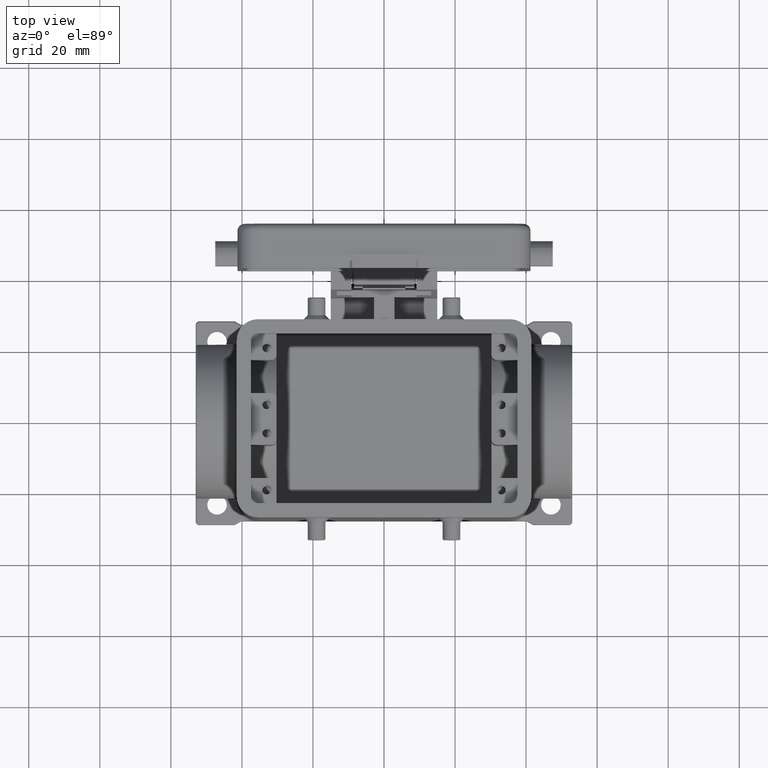
[diagram: clean part render]
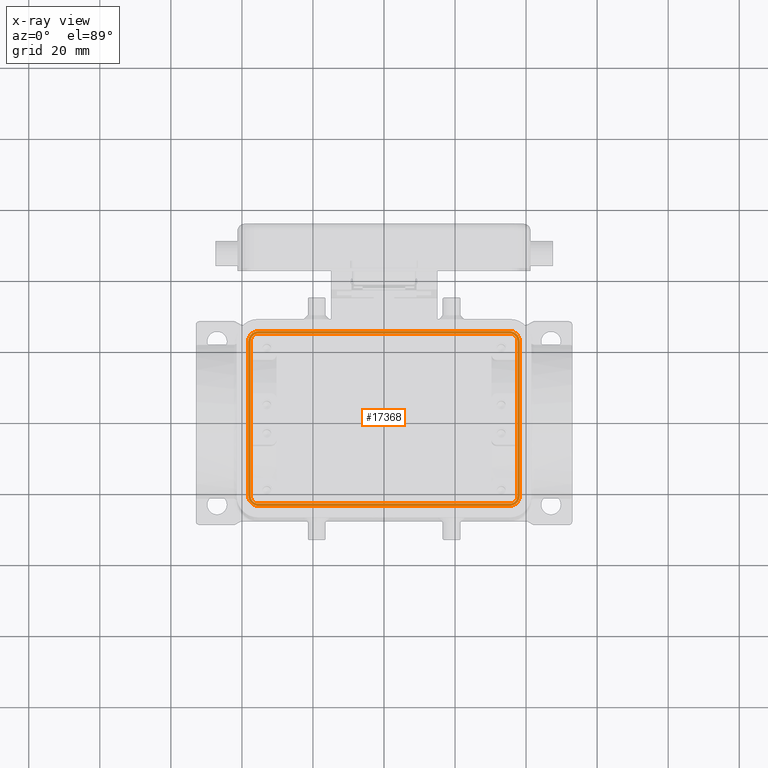
[diagram: x-ray — body ghosted, one internal face saturated and labeled with its STEP entity id]
A machine part, top view, then the same camera in x-ray: the body is ghosted and one INTERNAL B-rep face — a face not visible from any outside direction — is saturated and labeled: STEP entity #17368.
In plain terms, the highlighted planar face has unit normal (0, 0, 1).
Its self-contained STEP definition (entity closure, byte-faithful):
#12184=CARTESIAN_POINT('',(-38.250000000000007,21.649999999999999,24.0));
#12185=VERTEX_POINT('',#12184);
#12192=CARTESIAN_POINT('',(-38.250000000000000,-21.650000000000009,24.0));
#12193=VERTEX_POINT('',#12192);
#12194=CARTESIAN_POINT('',(-38.250000000000000,-21.650000000000009,24.0));
#12195=DIRECTION('',(0.0,1.0,0.0));
#12196=VECTOR('',#12195,43.300000000000011);
#12197=LINE('',#12194,#12196);
#12198=EDGE_CURVE('',#12193,#12185,#12197,.T.);
#12821=CARTESIAN_POINT('',(38.250000000000000,-21.649999999999995,24.0));
#12822=VERTEX_POINT('',#12821);
#12829=CARTESIAN_POINT('',(38.249999999999993,21.650000000000006,24.0));
#12830=VERTEX_POINT('',#12829);
#12831=CARTESIAN_POINT('',(38.249999999999993,21.650000000000006,24.0));
#12832=DIRECTION('',(0.0,-1.0,0.0));
#12833=VECTOR('',#12832,43.299999999999997);
#12834=LINE('',#12831,#12833);
#12835=EDGE_CURVE('',#12830,#12822,#12834,.T.);
#16727=CARTESIAN_POINT('',(-35.250000000000014,24.649999999999999,24.0));
#16728=VERTEX_POINT('',#16727);
#16735=CARTESIAN_POINT('',(-35.250000000000014,21.649999999999991,24.0));
#16736=DIRECTION('',(0.0,0.0,-1.0));
#16737=DIRECTION('',(0.0,1.0,0.0));
#16738=AXIS2_PLACEMENT_3D('',#16735,#16736,#16737);
#16739=CIRCLE('',#16738,3.000000000000000);
#16740=EDGE_CURVE('',#12185,#16728,#16739,.T.);
#16761=CARTESIAN_POINT('',(-35.250000000000000,-24.650000000000016,24.0));
#16762=VERTEX_POINT('',#16761);
#16763=CARTESIAN_POINT('',(-35.250000000000000,-21.650000000000009,24.0));
#16764=DIRECTION('',(0.0,0.0,-1.0));
#16765=DIRECTION('',(-1.0,0.0,0.0));
#16766=AXIS2_PLACEMENT_3D('',#16763,#16764,#16765);
#16767=CIRCLE('',#16766,3.000000000000000);
#16768=EDGE_CURVE('',#16762,#12193,#16767,.T.);
#17127=CARTESIAN_POINT('',(-35.500000000000000,23.900000000000002,24.000000000000004));
#17128=VERTEX_POINT('',#17127);
#17135=CARTESIAN_POINT('',(35.500000000000000,23.900000000000002,24.000000000000004));
#17136=VERTEX_POINT('',#17135);
#17137=CARTESIAN_POINT('',(35.500000000000000,23.900000000000002,24.000000000000004));
#17138=DIRECTION('',(-1.0,0.0,0.0));
#17139=VECTOR('',#17138,71.0);
#17140=LINE('',#17137,#17139);
#17141=EDGE_CURVE('',#17136,#17128,#17140,.T.);
#17158=CARTESIAN_POINT('',(-37.500000000000007,21.899999999999999,24.000000000000004));
#17159=VERTEX_POINT('',#17158);
#17166=CARTESIAN_POINT('',(-35.500000000000000,21.899999999999999,23.999999999999993));
#17167=DIRECTION('',(0.0,0.0,1.0));
#17168=DIRECTION('',(0.0,1.0,0.0));
#17169=AXIS2_PLACEMENT_3D('',#17166,#17167,#17168);
#17170=CIRCLE('',#17169,2.000000000000001);
#17171=EDGE_CURVE('',#17128,#17159,#17170,.T.);
#17183=CARTESIAN_POINT('',(-37.500000000000007,-21.899999999999999,24.000000000000004));
#17184=VERTEX_POINT('',#17183);
#17191=CARTESIAN_POINT('',(-37.500000000000007,21.899999999999999,24.000000000000004));
#17192=DIRECTION('',(0.0,-1.0,0.0));
#17193=VECTOR('',#17192,43.799999999999997);
#17194=LINE('',#17191,#17193);
#17195=EDGE_CURVE('',#17159,#17184,#17194,.T.);
#17207=CARTESIAN_POINT('',(-35.500000000000000,-23.899999999999999,24.000000000000004));
#17208=VERTEX_POINT('',#17207);
#17215=CARTESIAN_POINT('',(-35.500000000000000,-21.899999999999999,23.999999999999993));
#17216=DIRECTION('',(0.0,0.0,1.0));
#17217=DIRECTION('',(-1.0,0.0,0.0));
#17218=AXIS2_PLACEMENT_3D('',#17215,#17216,#17217);
#17219=CIRCLE('',#17218,2.000000000000000);
#17220=EDGE_CURVE('',#17184,#17208,#17219,.T.);
#17232=CARTESIAN_POINT('',(35.500000000000000,-23.899999999999999,24.000000000000004));
#17233=VERTEX_POINT('',#17232);
#17240=CARTESIAN_POINT('',(-35.500000000000000,-23.899999999999999,24.000000000000004));
#17241=DIRECTION('',(1.0,0.0,0.0));
#17242=VECTOR('',#17241,71.0);
#17243=LINE('',#17240,#17242);
#17244=EDGE_CURVE('',#17208,#17233,#17243,.T.);
#17256=CARTESIAN_POINT('',(37.500000000000000,-21.899999999999999,24.000000000000004));
#17257=VERTEX_POINT('',#17256);
#17264=CARTESIAN_POINT('',(35.500000000000000,-21.899999999999999,23.999999999999993));
#17265=DIRECTION('',(0.0,0.0,1.0));
#17266=DIRECTION('',(0.0,-1.0,0.0));
#17267=AXIS2_PLACEMENT_3D('',#17264,#17265,#17266);
#17268=CIRCLE('',#17267,2.000000000000001);
#17269=EDGE_CURVE('',#17233,#17257,#17268,.T.);
#17281=CARTESIAN_POINT('',(37.500000000000000,21.899999999999999,24.000000000000004));
#17282=VERTEX_POINT('',#17281);
#17289=CARTESIAN_POINT('',(37.500000000000000,-21.899999999999999,24.000000000000004));
#17290=DIRECTION('',(0.0,1.0,0.0));
#17291=VECTOR('',#17290,43.799999999999997);
#17292=LINE('',#17289,#17291);
#17293=EDGE_CURVE('',#17257,#17282,#17292,.T.);
#17306=CARTESIAN_POINT('',(35.500000000000000,21.899999999999999,23.999999999999993));
#17307=DIRECTION('',(0.0,0.0,1.0));
#17308=DIRECTION('',(1.0,0.0,0.0));
#17309=AXIS2_PLACEMENT_3D('',#17306,#17307,#17308);
#17310=CIRCLE('',#17309,2.000000000000001);
#17311=EDGE_CURVE('',#17282,#17136,#17310,.T.);
#17317=CARTESIAN_POINT('',(0.0,-1.387779E-016,23.999999999999993));
#17318=DIRECTION('',(0.0,0.0,1.0));
#17319=DIRECTION('',(1.0,0.0,0.0));
#17320=AXIS2_PLACEMENT_3D('',#17317,#17318,#17319);
#17321=PLANE('',#17320);
#17322=CARTESIAN_POINT('',(35.250000000000000,24.650000000000013,24.0));
#17323=VERTEX_POINT('',#17322);
#17324=CARTESIAN_POINT('',(35.250000000000000,21.650000000000006,24.0));
#17325=DIRECTION('',(0.0,0.0,-1.0));
#17326=DIRECTION('',(1.0,0.0,0.0));
#17327=AXIS2_PLACEMENT_3D('',#17324,#17325,#17326);
#17328=CIRCLE('',#17327,3.000000000000000);
#17329=EDGE_CURVE('',#17323,#12830,#17328,.T.);
#17330=ORIENTED_EDGE('',*,*,#17329,.T.);
#17331=ORIENTED_EDGE('',*,*,#12835,.T.);
#17332=CARTESIAN_POINT('',(35.250000000000007,-24.650000000000002,24.0));
#17333=VERTEX_POINT('',#17332);
#17334=CARTESIAN_POINT('',(35.250000000000007,-21.649999999999995,24.0));
#17335=DIRECTION('',(0.0,0.0,-1.0));
#17336=DIRECTION('',(0.0,-1.0,0.0));
#17337=AXIS2_PLACEMENT_3D('',#17334,#17335,#17336);
#17338=CIRCLE('',#17337,3.000000000000000);
#17339=EDGE_CURVE('',#12822,#17333,#17338,.T.);
#17340=ORIENTED_EDGE('',*,*,#17339,.T.);
#17341=CARTESIAN_POINT('',(35.250000000000007,-24.650000000000002,24.0));
#17342=DIRECTION('',(-1.0,0.0,0.0));
#17343=VECTOR('',#17342,70.500000000000000);
#17344=LINE('',#17341,#17343);
#17345=EDGE_CURVE('',#17333,#16762,#17344,.T.);
#17346=ORIENTED_EDGE('',*,*,#17345,.T.);
#17347=ORIENTED_EDGE('',*,*,#16768,.T.);
#17348=ORIENTED_EDGE('',*,*,#12198,.T.);
#17349=ORIENTED_EDGE('',*,*,#16740,.T.);
#17350=CARTESIAN_POINT('',(-35.250000000000014,24.649999999999999,24.0));
#17351=DIRECTION('',(1.0,0.0,0.0));
#17352=VECTOR('',#17351,70.500000000000014);
#17353=LINE('',#17350,#17352);
#17354=EDGE_CURVE('',#16728,#17323,#17353,.T.);
#17355=ORIENTED_EDGE('',*,*,#17354,.T.);
#17356=EDGE_LOOP('',(#17330,#17331,#17340,#17346,#17347,#17348,#17349,#17355));
#17357=FACE_OUTER_BOUND('',#17356,.T.);
#17358=ORIENTED_EDGE('',*,*,#17311,.T.);
#17359=ORIENTED_EDGE('',*,*,#17141,.T.);
#17360=ORIENTED_EDGE('',*,*,#17171,.T.);
#17361=ORIENTED_EDGE('',*,*,#17195,.T.);
#17362=ORIENTED_EDGE('',*,*,#17220,.T.);
#17363=ORIENTED_EDGE('',*,*,#17244,.T.);
#17364=ORIENTED_EDGE('',*,*,#17269,.T.);
#17365=ORIENTED_EDGE('',*,*,#17293,.T.);
#17366=EDGE_LOOP('',(#17358,#17359,#17360,#17361,#17362,#17363,#17364,#17365));
#17367=FACE_BOUND('',#17366,.T.);
#17368=ADVANCED_FACE('',(#17357,#17367),#17321,.F.);